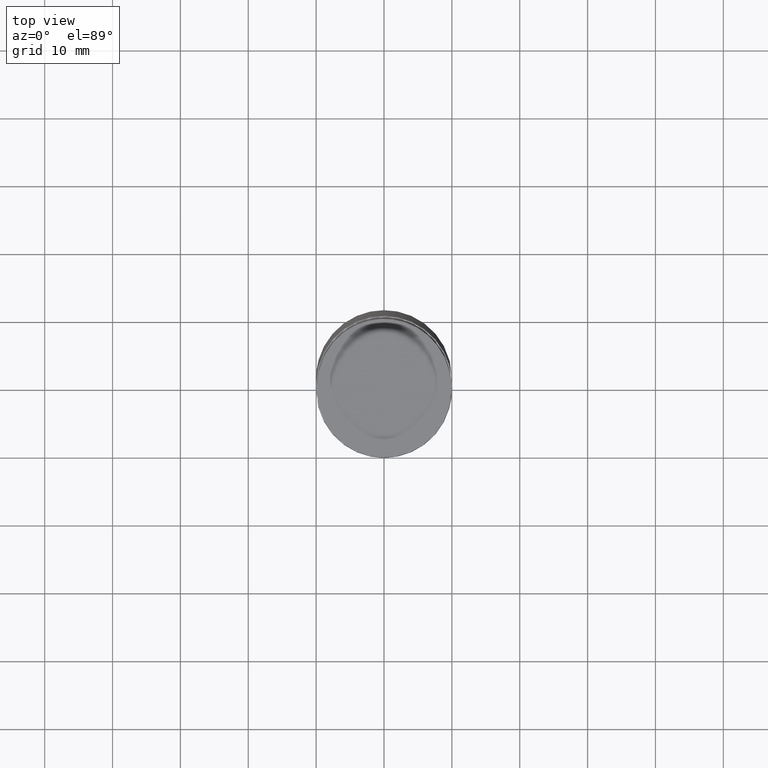
[diagram: clean part render]
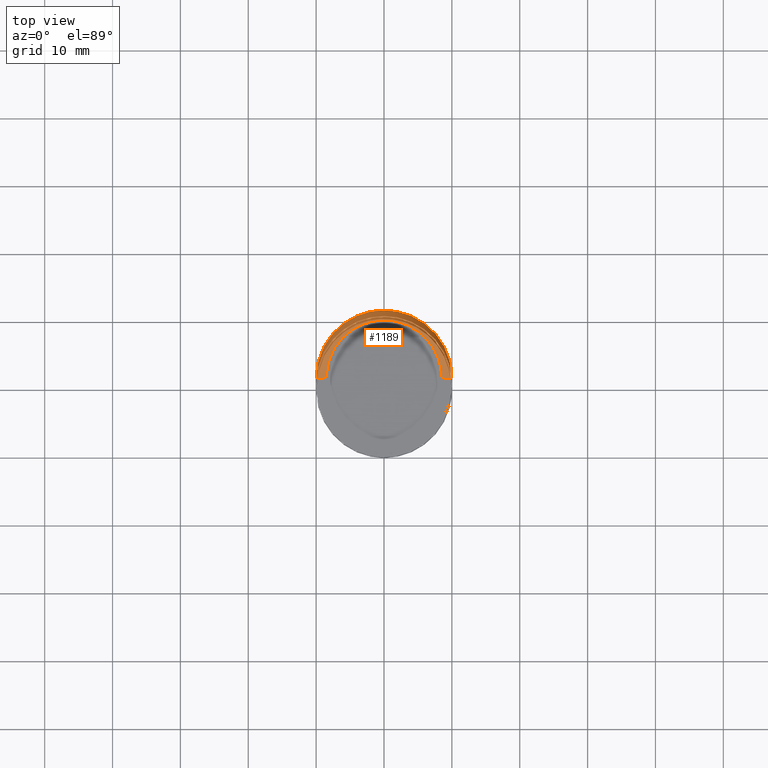
[diagram: same view with one face highlighted and labeled with its STEP entity id]
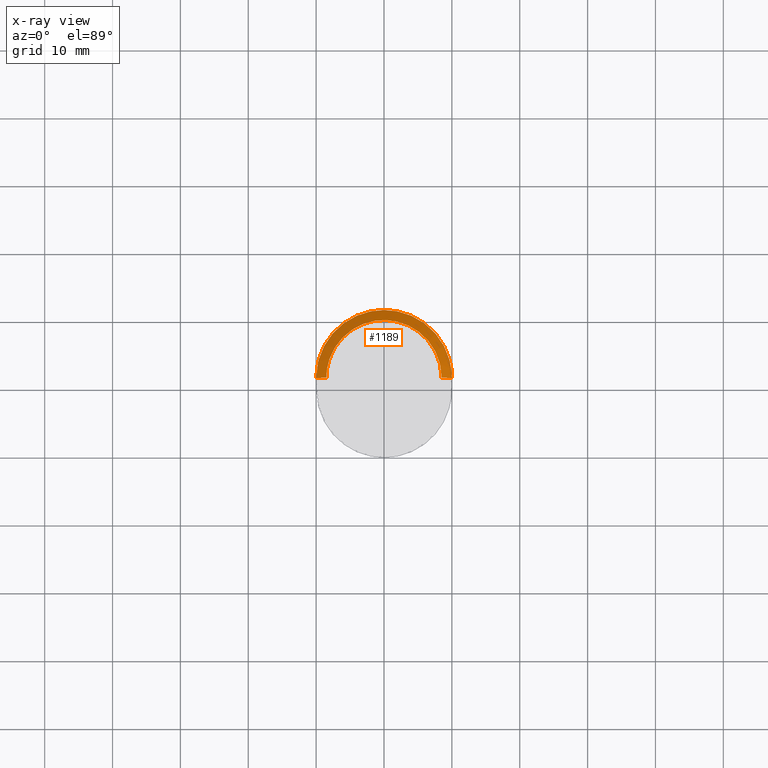
[diagram: x-ray of the same camera — body ghosted, the highlighted face saturated]
A machine part, top view. The second image highlights one B-rep face of the part: STEP entity #1189.
The next image is the same camera in x-ray: the body ghosted, the highlighted face saturated — about 0% of this face is hidden behind the body in this view.
In plain terms, the highlighted face is a freeform B-spline surface patch.
Its self-contained STEP definition (entity closure, byte-faithful):
#872=CARTESIAN_POINT('',(10.0,0.0,48.5));
#873=CARTESIAN_POINT('',(10.0,10.0,48.5));
#874=CARTESIAN_POINT('',(0.0,10.0,48.5));
#875=CARTESIAN_POINT('',(-10.0,10.0,48.5));
#876=CARTESIAN_POINT('',(-10.0,0.0,48.5));
#877=CARTESIAN_POINT('',(8.5,0.0,50.0));
#878=CARTESIAN_POINT('',(8.5,8.5,50.0));
#879=CARTESIAN_POINT('',(0.0,8.5,50.0));
#880=CARTESIAN_POINT('',(-8.5,8.5,50.0));
#881=CARTESIAN_POINT('',(-8.5,0.0,50.0));
#1170=(
BOUNDED_SURFACE()
B_SPLINE_SURFACE(1,2,(
(#872,#873,#874,#875,#876),
(#877,#878,#879,#880,#881)
), .UNSPECIFIED.,.F.,.F.,.F.)
B_SPLINE_SURFACE_WITH_KNOTS((2,2),(3,2,3),(
0.0,1.0),(
0.0,0.5,1.0), .UNSPECIFIED.)
GEOMETRIC_REPRESENTATION_ITEM()
RATIONAL_B_SPLINE_SURFACE(((1.0,0.707106781187,1.0,0.707106781187,1.0),
(1.0,0.707106781187,1.0,0.707106781187,1.0)
))
REPRESENTATION_ITEM('')
SURFACE()
);
#1171=(
BOUNDED_CURVE()
B_SPLINE_CURVE(2,(#876,#875,#874,#873,#872),.UNSPECIFIED.,.F.,.F.)
B_SPLINE_CURVE_WITH_KNOTS((3,2,3),
(0.0,0.5,1.0),.UNSPECIFIED.)
CURVE()
GEOMETRIC_REPRESENTATION_ITEM()
RATIONAL_B_SPLINE_CURVE((1.0,0.707106781187,1.0,0.707106781187,1.0))
REPRESENTATION_ITEM('')
);
#1172=(
BOUNDED_CURVE()
B_SPLINE_CURVE(1,(#872,#877),.UNSPECIFIED.,.F.,.F.)
B_SPLINE_CURVE_WITH_KNOTS((2,2),
(0.0,1.0),.UNSPECIFIED.)
CURVE()
GEOMETRIC_REPRESENTATION_ITEM()
RATIONAL_B_SPLINE_CURVE((1.0,1.0))
REPRESENTATION_ITEM('')
);
#1173=(
BOUNDED_CURVE()
B_SPLINE_CURVE(2,(#877,#878,#879,#880,#881),.UNSPECIFIED.,.F.,.F.)
B_SPLINE_CURVE_WITH_KNOTS((3,2,3),
(0.0,0.5,1.0),.UNSPECIFIED.)
CURVE()
GEOMETRIC_REPRESENTATION_ITEM()
RATIONAL_B_SPLINE_CURVE((1.0,0.707106781187,1.0,0.707106781187,1.0))
REPRESENTATION_ITEM('')
);
#1174=(
BOUNDED_CURVE()
B_SPLINE_CURVE(1,(#881,#876),.UNSPECIFIED.,.F.,.F.)
B_SPLINE_CURVE_WITH_KNOTS((2,2),
(0.0,1.0),.UNSPECIFIED.)
CURVE()
GEOMETRIC_REPRESENTATION_ITEM()
RATIONAL_B_SPLINE_CURVE((1.0,1.0))
REPRESENTATION_ITEM('')
);
#1175=VERTEX_POINT('',#872);
#1176=VERTEX_POINT('',#876);
#1177=VERTEX_POINT('',#877);
#1178=VERTEX_POINT('',#881);
#1179=EDGE_CURVE('',#1176,#1175,#1171,.T.);
#1180=EDGE_CURVE('',#1175,#1177,#1172,.T.);
#1181=EDGE_CURVE('',#1177,#1178,#1173,.T.);
#1182=EDGE_CURVE('',#1178,#1176,#1174,.T.);
#1183=ORIENTED_EDGE('',*,*,#1179,.T.);
#1184=ORIENTED_EDGE('',*,*,#1180,.T.);
#1185=ORIENTED_EDGE('',*,*,#1181,.T.);
#1186=ORIENTED_EDGE('',*,*,#1182,.T.);
#1187=EDGE_LOOP('',(#1183,#1184,#1185,#1186));
#1188=FACE_OUTER_BOUND('',#1187,.T.);
#1189=ADVANCED_FACE('',(#1188),#1170,.T.);